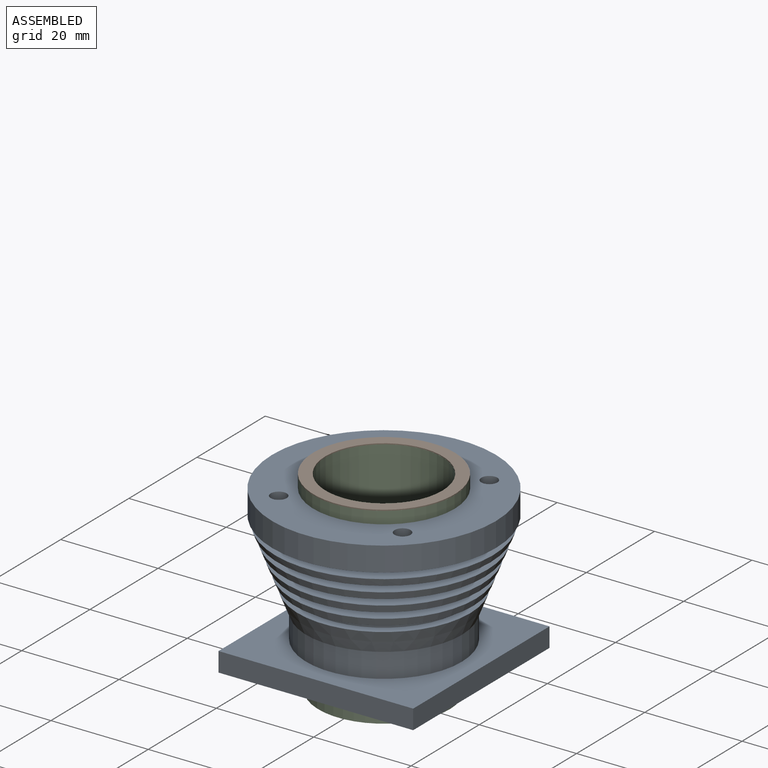
[diagram: assembled view]
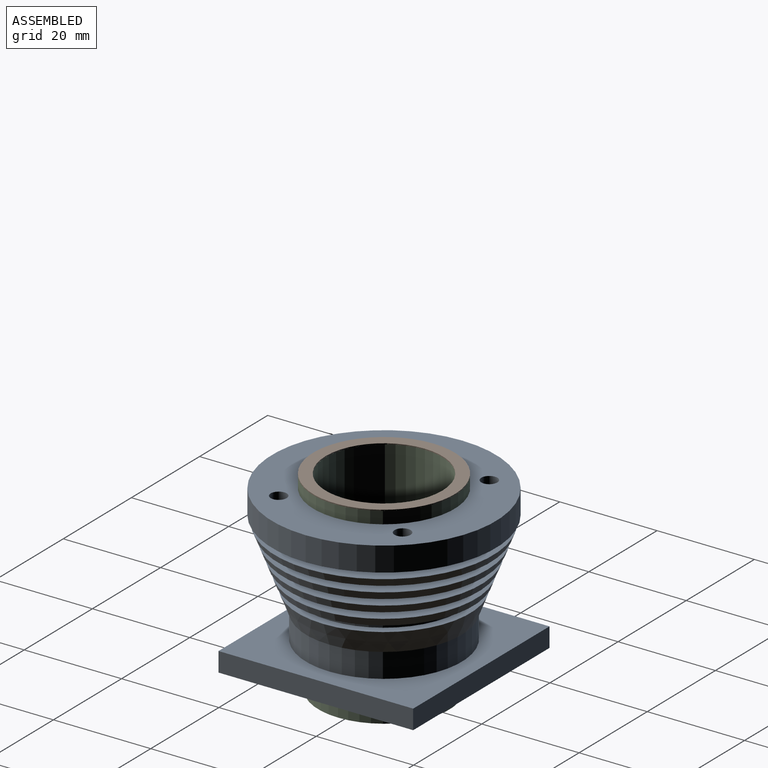
[diagram: assembled view, second angle]
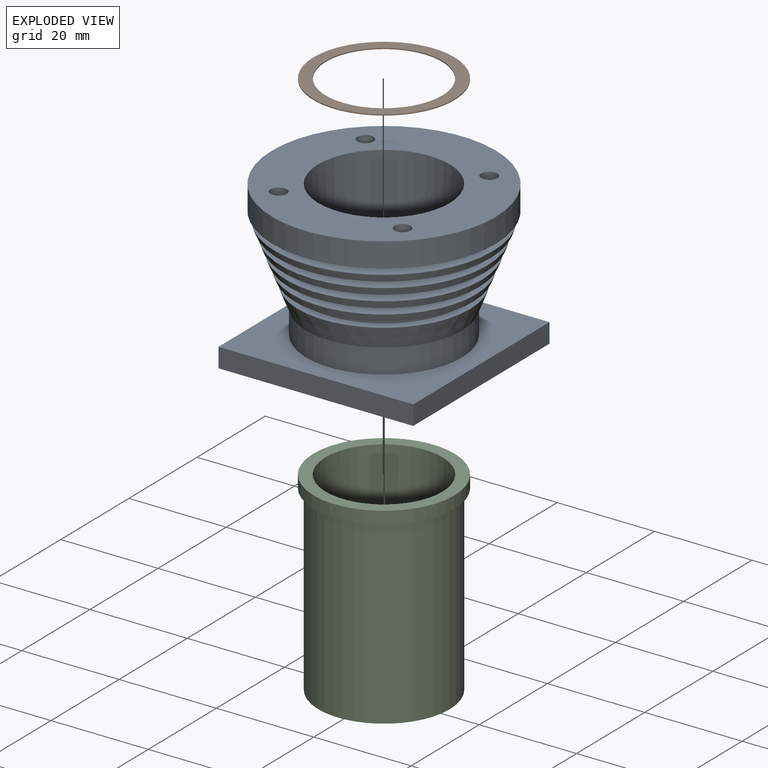
[diagram: exploded view]
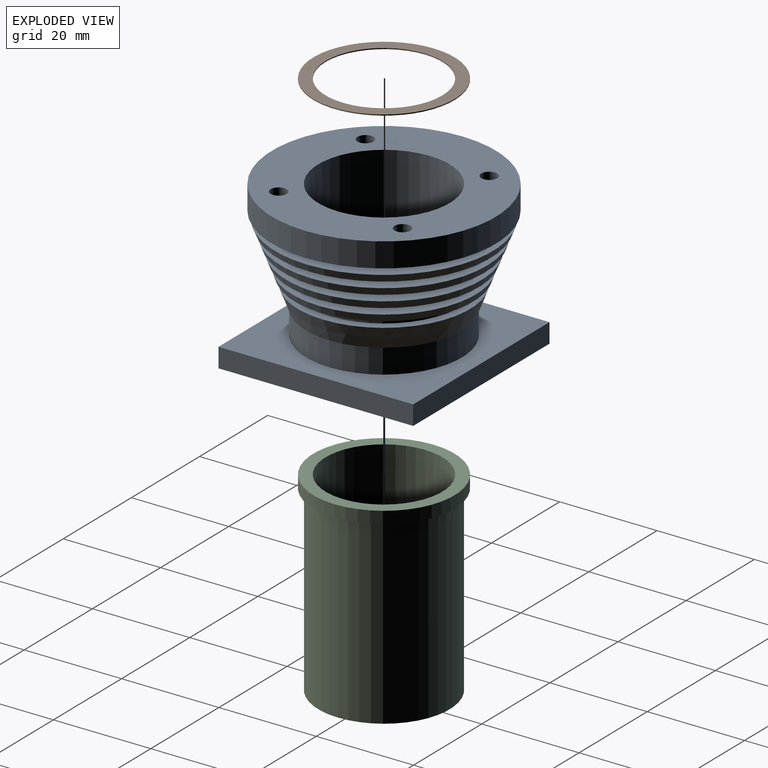
[diagram: exploded view, second angle]
ASSEMBLY  parts=3 mates=2
PART A: 34 faces, bbox 46x46x32 mm
  f0: cone r=16mm half-angle=21.3deg, axis (0,0,1), area 223.7mm2, adj f1,f7
  f1: plane 44.83x44.83mm, normal (0,0,1), area 774.4mm2, adj f0,f2
  f2: cylinder r=16mm len=32mm, axis (0,0,-1), area 150.8mm2, adj f1,f3
  f3: plane 46x46mm, normal (0,0,-1), area 823.4mm2, adj f2,f5,f30,f31,f32,f33
  f4: plane 46x46mm, normal (0,0,1), area 1055.1mm2, adj f5,f29,f30,f31,f32,f33
  f5: cylinder r=23mm len=46mm, axis (0,0,1), area 722.6mm2, adj f3,f4
  f6: plane 42.5x42.5mm, normal (0,0,1), area 614.4mm2, adj f8,f9
  f7: plane 43.67x43.67mm, normal (0,0,-1), area 693.3mm2, adj f0,f8
  f8: cylinder r=16mm len=32mm, axis (0,0,-1), area 150.8mm2, adj f6,f7
  f9: cone r=16mm half-angle=21.3deg, axis (0,0,1), area 211.9mm2, adj f6,f11
  f10: plane 40.17x40.17mm, normal (0,0,1), area 462.9mm2, adj f12,f13
  f11: plane 41.33x41.33mm, normal (0,0,-1), area 537.6mm2, adj f9,f12
  f12: cylinder r=16mm len=32mm, axis (0,0,-1), area 150.8mm2, adj f10,f11
  f13: cone r=16mm half-angle=21.3deg, axis (0,0,1), area 200.1mm2, adj f10,f15
  f14: plane 37.83x37.83mm, normal (0,0,1), area 319.9mm2, adj f16,f17
  f15: plane 39x39mm, normal (0,0,-1), area 390.3mm2, adj f13,f16
  f16: cylinder r=16mm len=32mm, axis (0,0,-1), area 150.8mm2, adj f14,f15
  f17: cone r=16mm half-angle=21.3deg, axis (0,0,1), area 188.3mm2, adj f14,f19
  f18: plane 35.5x35.5mm, normal (0,0,1), area 185.6mm2, adj f20,f28
  f19: plane 36.67x36.67mm, normal (0,0,-1), area 251.7mm2, adj f17,f20
  f20: cylinder r=16mm len=32mm, axis (0,0,-1), area 150.8mm2, adj f18,f19
  f21: plane 40x40mm, normal (0,0,-1), area 1027.4mm2, adj f22,f23,f24,f25,f29
  f22: plane 40x4mm, normal (0,-1,0), area 160mm2, adj f21,f23,f25,f26
  f23: plane 40x4mm, normal (-1,0,0), area 160mm2, adj f21,f22,f24,f26
  f24: plane 40x4mm, normal (0,1,0), area 160mm2, adj f21,f23,f25,f26
  f25: plane 40x4mm, normal (1,0,0), area 160mm2, adj f21,f22,f24,f26
  f26: plane 40x40mm, normal (0,0,1), area 795.8mm2, adj f22,f23,f24,f25,f27
  f27: cylinder r=16mm len=32mm, axis (0,0,1), area 502.7mm2, adj f26,f28
  f28: cone r=16mm half-angle=21.3deg, axis (0,0,1), area 511.9mm2, adj f18,f27
  f29: cylinder r=13.5mm len=32mm, axis (0,0,-1), area 2714.3mm2, adj f4,f21
  f30: cylinder r=1.65mm len=5mm, axis (0,0,1), area 51.8mm2, adj f3,f4
  f31: cylinder r=1.65mm len=5mm, axis (0,0,1), area 51.8mm2, adj f3,f4
  f32: cylinder r=1.65mm len=5mm, axis (0,0,1), area 51.8mm2, adj f3,f4
  f33: cylinder r=1.65mm len=5mm, axis (0,0,1), area 51.8mm2, adj f3,f4
PART B: 4 faces, bbox 29x29x0.2 mm
  f0: cylinder r=12mm len=24mm, axis (0,0,-1), area 15.1mm2, adj f2,f3
  f1: cylinder r=14.5mm len=29mm, axis (0,0,-1), area 18.2mm2, adj f2,f3
  f2: plane 29x29mm, normal (0,0,1), area 208.1mm2, adj f0,f1
  f3: plane 29x29mm, normal (0,0,-1), area 208.1mm2, adj f0,f1
PART C: 6 faces, bbox 29x29x40 mm
  f0: cylinder r=13.5mm len=37.5mm, axis (0,0,-1), area 3180.9mm2, adj f1,f5
  f1: plane 29x29mm, normal (0,0,-1), area 88mm2, adj f0,f2
  f2: cylinder r=14.5mm len=29mm, axis (0,0,-1), area 227.8mm2, adj f1,f3
  f3: plane 29x29mm, normal (0,0,1), area 208.1mm2, adj f2,f4
  f4: cylinder r=12mm len=40mm, axis (0,0,-1), area 3015.9mm2, adj f3,f5
  f5: plane 27x27mm, normal (0,0,-1), area 120.2mm2, adj f0,f4
PLACE A t=(0.33,0.16,-14.65)mm fixed
PLACE B t=(0.33,0.16,-14.65)mm
PLACE C t=(0.33,0.16,-14.65)mm
MATE fastened C.f0 <-> A.f0  axis (0,0,-1) through (0.33,0.16,17.35)mm
MATE fastened B.f0 <-> C.f0  axis (0,0,-1) through (0.33,0.16,19.85)mm
